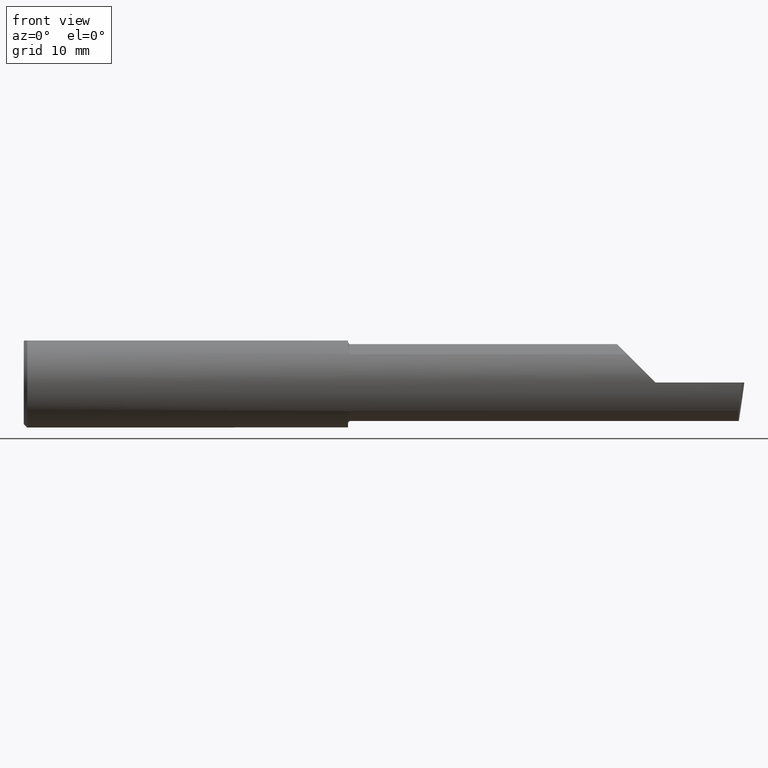
[diagram: clean part render]
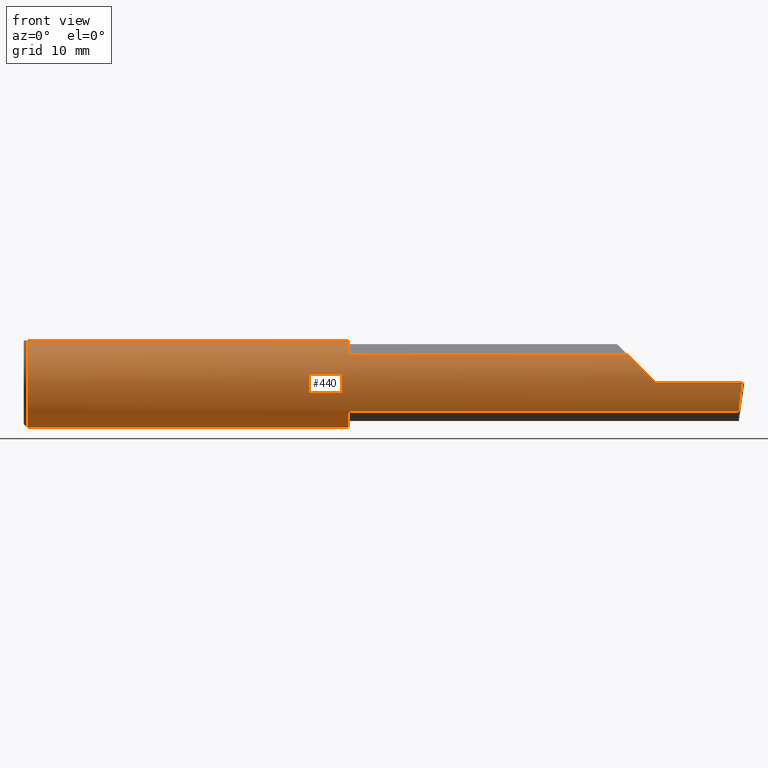
[diagram: same view with one face highlighted and labeled with its STEP entity id]
A machine part, front view. The second image highlights one B-rep face of the part: STEP entity #440.
In plain terms, the highlighted cylindrical surface (partial cylindrical patch) has radius 4.7587 mm, axis along (-1, -0, -0).
Its self-contained STEP definition (entity closure, byte-faithful):
#2 = AXIS2_PLACEMENT_3D ( 'NONE', #566, #483, #526 ) ;
#14 = CARTESIAN_POINT ( 'NONE',  ( 2.980648201915109485, -0.1728409665178086974, -0.08432347972837200833 ) ) ;
#19 = DIRECTION ( 'NONE',  ( -1.000000000000000000, -0.0000000000000000000, -0.0000000000000000000 ) ) ;
#26 = CARTESIAN_POINT ( 'NONE',  ( 0.01499999999999997863, -0.06597272163553657975, 0.1753499999999999781 ) ) ;
#27 = VERTEX_POINT ( 'NONE', #175 ) ;
#31 = CARTESIAN_POINT ( 'NONE',  ( 2.010000000000000231, -0.1454917112299465021, 0.1180346748349054287 ) ) ;
#37 = CARTESIAN_POINT ( 'NONE',  ( 0.0000000000000000000, 0.06597272163553677404, 0.1753499999999999226 ) ) ;
#45 = VERTEX_POINT ( 'NONE', #249 ) ;
#46 = CARTESIAN_POINT ( 'NONE',  ( 1.350000000000000311, -0.1013606951871662831, -0.1575627873933891920 ) ) ;
#48 = ORIENTED_EDGE ( 'NONE', *, *, #530, .F. ) ;
#50 = CARTESIAN_POINT ( 'NONE',  ( 1.350000000000000311, -0.1099295023601654653, -0.1520504436074704979 ) ) ;
#51 = CARTESIAN_POINT ( 'NONE',  ( 1.357921033727478521, -0.1445976381173492142, 0.1191292621734219709 ) ) ;
#55 = CARTESIAN_POINT ( 'NONE',  ( 1.350483388365424364, -0.1180160148311104606, -0.1458664675357414509 ) ) ;
#58 = CARTESIAN_POINT ( 'NONE',  ( 1.352152469637251109, -0.1294082664154920792, -0.1355718222394687866 ) ) ;
#61 = CARTESIAN_POINT ( 'NONE',  ( 1.357909242887170853, -0.1445870704379413896, -0.1191421054870963059 ) ) ;
#62 = VERTEX_POINT ( 'NONE', #218 ) ;
#63 = B_SPLINE_CURVE_WITH_KNOTS ( 'NONE', 3,
 ( #377, #544, #590, #491, #398, #84, #245, #269, #365, #155, #51, #425, #429, #511 ),
 .UNSPECIFIED., .F., .F.,
 ( 4, 2, 2, 2, 2, 2, 4 ),
 ( 0.0006605532644857158020, 0.001446564801351194179, 0.001839570569783934018, 0.002036073454000306322, 0.002134324896108489873, 0.002183450617162586635, 0.002232576338216682964 ),
 .UNSPECIFIED. ) ;
#66 = CARTESIAN_POINT ( 'NONE',  ( 2.629999999999999893, -0.1873499999999999888, -1.592040838891560883E-17 ) ) ;
#67 = CARTESIAN_POINT ( 'NONE',  ( 1.358770022656896170, -0.1452078353828887280, -0.1183847404910805950 ) ) ;
#68 = CARTESIAN_POINT ( 'NONE',  ( 2.586590019116435712, -0.1873500000000000165, 0.04340998088356372991 ) ) ;
#77 = CARTESIAN_POINT ( 'NONE',  ( 1.350000000000000311, 0.0000000000000000000, 0.0000000000000000000 ) ) ;
#82 = ORIENTED_EDGE ( 'NONE', *, *, #294, .T. ) ;
#83 = ORIENTED_EDGE ( 'NONE', *, *, #506, .T. ) ;
#84 = CARTESIAN_POINT ( 'NONE',  ( 1.354402240695039117, -0.1382337250035442500, 0.1264828452200237596 ) ) ;
#91 = CARTESIAN_POINT ( 'NONE',  ( 1.359335809113331406, -0.1454917112299462245, -0.1180346748349057201 ) ) ;
#95 = VERTEX_POINT ( 'NONE', #159 ) ;
#98 = CARTESIAN_POINT ( 'NONE',  ( 1.360000000000000320, -0.1454917112299460580, -0.1180346748349056646 ) ) ;
#100 = CARTESIAN_POINT ( 'NONE',  ( 0.01499999999999999424, 0.0000000000000000000, -0.1873499999999999888 ) ) ;
#104 = CARTESIAN_POINT ( 'NONE',  ( 1.356664569472228132, -0.1431262185210684379, -0.1208975608635240034 ) ) ;
#110 = VECTOR ( 'NONE', #462, 39.37007874015748143 ) ;
#124 = CARTESIAN_POINT ( 'NONE',  ( 2.511965325165094853, -0.1454917112299475568, 0.1180346748349042352 ) ) ;
#125 = CIRCLE ( 'NONE', #2, 0.1873499999999999888 ) ;
#128 = ORIENTED_EDGE ( 'NONE', *, *, #556, .T. ) ;
#129 = EDGE_LOOP ( 'NONE', ( #274, #83, #347, #207, #235, #445, #402, #128, #216, #48, #82, #301, #493 ) ) ;
#130 = VERTEX_POINT ( 'NONE', #100 ) ;
#134 = CIRCLE ( 'NONE', #192, 0.1873499999999999888 ) ;
#141 = EDGE_CURVE ( 'NONE', #287, #95, #581, .T. ) ;
#143 = LINE ( 'NONE', #454, #534 ) ;
#155 = CARTESIAN_POINT ( 'NONE',  ( 1.357580800664965670, -0.1442412736056265521, 0.1195608849622527420 ) ) ;
#159 = CARTESIAN_POINT ( 'NONE',  ( 1.350000000000000311, -0.1013606951871662831, -0.1575627873933891920 ) ) ;
#161 =( BOUNDED_CURVE ( )  B_SPLINE_CURVE ( 3, ( #66, #68, #311, #124 ),
 .UNSPECIFIED., .F., .F. ) 
 B_SPLINE_CURVE_WITH_KNOTS ( ( 4, 4 ),
 ( 4.712388980384689674, 5.393970886271879372 ),
 .UNSPECIFIED. ) 
 CURVE ( )  GEOMETRIC_REPRESENTATION_ITEM ( )  RATIONAL_B_SPLINE_CURVE ( ( 1.000000000000000000, 0.9616603987079558324, 0.9616603987079558324, 1.000000000000000000 ) ) 
 REPRESENTATION_ITEM ( '' )  );
#167 = EDGE_CURVE ( 'NONE', #337, #474, #413, .T. ) ;
#175 = CARTESIAN_POINT ( 'NONE',  ( 1.350000000000000311, -0.1013606951871662831, 0.1575627873933891920 ) ) ;
#176 = CARTESIAN_POINT ( 'NONE',  ( 1.352858161161657025, -0.1330631366558194806, -0.1319833113027350791 ) ) ;
#178 = DIRECTION ( 'NONE',  ( 0.0000000000000000000, 1.000000000000000000, 0.0000000000000000000 ) ) ;
#186 = AXIS2_PLACEMENT_3D ( 'NONE', #356, #460, #542 ) ;
#189 = VECTOR ( 'NONE', #280, 39.37007874015748143 ) ;
#192 = AXIS2_PLACEMENT_3D ( 'NONE', #77, #583, #178 ) ;
#193 = CARTESIAN_POINT ( 'NONE',  ( 1.350000000000000311, -0.06597272163553659363, 0.1753499999999999781 ) ) ;
#203 = CARTESIAN_POINT ( 'NONE',  ( 2.010000000000000231, -0.1454917112299465021, -0.1180346748349054287 ) ) ;
#207 = ORIENTED_EDGE ( 'NONE', *, *, #597, .T. ) ;
#216 = ORIENTED_EDGE ( 'NONE', *, *, #326, .F. ) ;
#218 = CARTESIAN_POINT ( 'NONE',  ( 0.01499999999999999424, 0.06597272163553677404, 0.1753499999999999226 ) ) ;
#227 = CARTESIAN_POINT ( 'NONE',  ( 1.357567572594822414, -0.1442269357022583354, -0.1195781817710035860 ) ) ;
#232 = EDGE_CURVE ( 'NONE', #95, #45, #595, .T. ) ;
#235 = ORIENTED_EDGE ( 'NONE', *, *, #167, .F. ) ;
#240 = AXIS2_PLACEMENT_3D ( 'NONE', #571, #495, #466 ) ;
#245 = CARTESIAN_POINT ( 'NONE',  ( 1.354997648858497827, -0.1399294360413330385, 0.1246027428089599431 ) ) ;
#249 = CARTESIAN_POINT ( 'NONE',  ( 1.350000000000000311, 0.06597272163553680180, 0.1753499999999999781 ) ) ;
#251 = DIRECTION ( 'NONE',  ( 0.0000000000000000000, 0.0000000000000000000, 1.000000000000000000 ) ) ;
#254 = VERTEX_POINT ( 'NONE', #579 ) ;
#256 = CIRCLE ( 'NONE', #471, 0.1873499999999999888 ) ;
#260 = CARTESIAN_POINT ( 'NONE',  ( 0.01499999999999999424, 0.0000000000000000000, 0.0000000000000000000 ) ) ;
#261 = EDGE_CURVE ( 'NONE', #27, #337, #63, .T. ) ;
#262 = CARTESIAN_POINT ( 'NONE',  ( 0.0000000000000000000, -0.06597272163553671853, 0.1753499999999999226 ) ) ;
#269 = CARTESIAN_POINT ( 'NONE',  ( 1.356216587669451412, -0.1423502170013163648, 0.1218111458006551073 ) ) ;
#274 = ORIENTED_EDGE ( 'NONE', *, *, #524, .F. ) ;
#280 = DIRECTION ( 'NONE',  ( 1.000000000000000000, -5.691349986800549142E-18, 0.0000000000000000000 ) ) ;
#287 = VERTEX_POINT ( 'NONE', #309 ) ;
#294 = EDGE_CURVE ( 'NONE', #62, #45, #305, .T. ) ;
#301 = ORIENTED_EDGE ( 'NONE', *, *, #232, .F. ) ;
#305 = LINE ( 'NONE', #37, #558 ) ;
#309 = CARTESIAN_POINT ( 'NONE',  ( 1.360000000000000320, -0.1454917112299460580, -0.1180346748349056646 ) ) ;
#311 = CARTESIAN_POINT ( 'NONE',  ( 2.545676520271628718, -0.1728409665178091414, 0.08432347972837085648 ) ) ;
#315 = VERTEX_POINT ( 'NONE', #508 ) ;
#316 = VERTEX_POINT ( 'NONE', #26 ) ;
#321 = CARTESIAN_POINT ( 'NONE',  ( 2.990625440078233499, -0.1873499999999999888, -6.696573958807098242E-17 ) ) ;
#326 = EDGE_CURVE ( 'NONE', #130, #316, #256, .T. ) ;
#337 = VERTEX_POINT ( 'NONE', #538 ) ;
#341 = DIRECTION ( 'NONE',  ( -1.000000000000000000, -0.0000000000000000000, -0.0000000000000000000 ) ) ;
#347 = ORIENTED_EDGE ( 'NONE', *, *, #587, .T. ) ;
#356 = CARTESIAN_POINT ( 'NONE',  ( 1.350000000000000311, 0.0000000000000000000, 0.0000000000000000000 ) ) ;
#365 = CARTESIAN_POINT ( 'NONE',  ( 1.356674049009441552, -0.1431412424162801234, 0.1208797671938530438 ) ) ;
#367 = CARTESIAN_POINT ( 'NONE',  ( 2.977223734188808368, -0.1454917112299465021, -0.1180346748349054287 ) ) ;
#377 = CARTESIAN_POINT ( 'NONE',  ( 1.350000000000000311, -0.1013606951871662831, 0.1575627873933891920 ) ) ;
#394 = VERTEX_POINT ( 'NONE', #193 ) ;
#395 = DIRECTION ( 'NONE',  ( -1.000000000000000000, -0.0000000000000000000, -0.0000000000000000000 ) ) ;
#398 = CARTESIAN_POINT ( 'NONE',  ( 1.352845212421890819, -0.1330145888620359040, 0.1320338710448779596 ) ) ;
#402 = ORIENTED_EDGE ( 'NONE', *, *, #568, .F. ) ;
#413 = LINE ( 'NONE', #31, #189 ) ;
#425 = CARTESIAN_POINT ( 'NONE',  ( 1.358780002058963987, -0.1452129146512408098, 0.1183784924451703191 ) ) ;
#429 = CARTESIAN_POINT ( 'NONE',  ( 1.359343186359709632, -0.1454917112302220594, 0.1180346748345674213 ) ) ;
#440 = ADVANCED_FACE ( 'NONE', ( #551 ), #574, .T. ) ;
#441 = CARTESIAN_POINT ( 'NONE',  ( 1.354404192622242542, -0.1382376748423444768, -0.1264781021717286957 ) ) ;
#442 = VERTEX_POINT ( 'NONE', #321 ) ;
#445 = ORIENTED_EDGE ( 'NONE', *, *, #261, .F. ) ;
#454 = CARTESIAN_POINT ( 'NONE',  ( 5.044671737413194975E-32, -0.1873499999999999610, 3.563723795045361633E-16 ) ) ;
#460 = DIRECTION ( 'NONE',  ( 1.000000000000000000, -5.691349986800549142E-18, 0.0000000000000000000 ) ) ;
#462 = DIRECTION ( 'NONE',  ( -1.000000000000000000, 5.691349986800549142E-18, -0.0000000000000000000 ) ) ;
#466 = DIRECTION ( 'NONE',  ( 0.0000000000000000000, 0.0000000000000000000, 1.000000000000000000 ) ) ;
#471 = AXIS2_PLACEMENT_3D ( 'NONE', #260, #341, #251 ) ;
#474 = VERTEX_POINT ( 'NONE', #507 ) ;
#478 = LINE ( 'NONE', #203, #110 ) ;
#483 = DIRECTION ( 'NONE',  ( -1.000000000000000000, -0.0000000000000000000, -0.0000000000000000000 ) ) ;
#486 = LINE ( 'NONE', #262, #497 ) ;
#491 = CARTESIAN_POINT ( 'NONE',  ( 1.352149571221041180, -0.1293863363941681333, 0.1355911774285945004 ) ) ;
#493 = ORIENTED_EDGE ( 'NONE', *, *, #141, .F. ) ;
#495 = DIRECTION ( 'NONE',  ( -1.000000000000000000, -0.0000000000000000000, -0.0000000000000000000 ) ) ;
#497 = VECTOR ( 'NONE', #19, 39.37007874015748143 ) ;
#506 = EDGE_CURVE ( 'NONE', #315, #442, #572, .T. ) ;
#507 = CARTESIAN_POINT ( 'NONE',  ( 2.511965325165094853, -0.1454917112299475568, 0.1180346748349042352 ) ) ;
#508 = CARTESIAN_POINT ( 'NONE',  ( 2.977223734188808368, -0.1454917112299465021, -0.1180346748349054287 ) ) ;
#509 = CARTESIAN_POINT ( 'NONE',  ( 1.354992410154055804, -0.1399157128067677891, -0.1246181391956572848 ) ) ;
#511 = CARTESIAN_POINT ( 'NONE',  ( 1.360000000000000320, -0.1454917112299459747, 0.1180346748349057201 ) ) ;
#524 = EDGE_CURVE ( 'NONE', #315, #287, #478, .T. ) ;
#526 = DIRECTION ( 'NONE',  ( 0.0000000000000000000, 0.0000000000000000000, 1.000000000000000000 ) ) ;
#530 = EDGE_CURVE ( 'NONE', #62, #130, #125, .T. ) ;
#534 = VECTOR ( 'NONE', #395, 39.37007874015748143 ) ;
#538 = CARTESIAN_POINT ( 'NONE',  ( 1.360000000000000320, -0.1454917112299459747, 0.1180346748349057201 ) ) ;
#542 = DIRECTION ( 'NONE',  ( 0.0000000000000000000, 1.000000000000000000, 0.0000000000000000000 ) ) ;
#544 = CARTESIAN_POINT ( 'NONE',  ( 1.350000000000000533, -0.1100056335683315678, 0.1520014681335478957 ) ) ;
#545 = CARTESIAN_POINT ( 'NONE',  ( 1.356208682939483712, -0.1423361566194920047, -0.1218275716760987282 ) ) ;
#551 = FACE_OUTER_BOUND ( 'NONE', #129, .T. ) ;
#556 = EDGE_CURVE ( 'NONE', #394, #316, #486, .T. ) ;
#558 = VECTOR ( 'NONE', #585, 39.37007874015748143 ) ;
#566 = CARTESIAN_POINT ( 'NONE',  ( 0.01499999999999999424, 0.0000000000000000000, 0.0000000000000000000 ) ) ;
#568 = EDGE_CURVE ( 'NONE', #394, #27, #134, .T. ) ;
#571 = CARTESIAN_POINT ( 'NONE',  ( 0.0000000000000000000, 0.0000000000000000000, 0.0000000000000000000 ) ) ;
#572 =( BOUNDED_CURVE ( )  B_SPLINE_CURVE ( 3, ( #367, #14, #594, #598 ),
 .UNSPECIFIED., .F., .F. ) 
 B_SPLINE_CURVE_WITH_KNOTS ( ( 4, 4 ),
 ( 0.6791649766275661415, 1.360746882514764389 ),
 .UNSPECIFIED. ) 
 CURVE ( )  GEOMETRIC_REPRESENTATION_ITEM ( )  RATIONAL_B_SPLINE_CURVE ( ( 1.000000000000000000, 0.9616603987079548332, 0.9616603987079548332, 1.000000000000000000 ) ) 
 REPRESENTATION_ITEM ( '' )  );
#574 = CYLINDRICAL_SURFACE ( 'NONE', #240, 0.1873499999999999888 ) ;
#579 = CARTESIAN_POINT ( 'NONE',  ( 2.629999999999999893, -0.1873499999999999888, -1.592040838891560883E-17 ) ) ;
#581 = B_SPLINE_CURVE_WITH_KNOTS ( 'NONE', 3,
 ( #98, #91, #67, #61, #227, #104, #545, #509, #441, #176, #58, #55, #50, #46 ),
 .UNSPECIFIED., .F., .F.,
 ( 4, 2, 2, 2, 2, 2, 4 ),
 ( 1.967643395654746293E-07, 5.001319782656384310E-05, 9.982963131356221390E-05, 0.0001994624982875588606, 0.0003987282322355520186, 0.0007972597001315340519, 0.001594322635923497468 ),
 .UNSPECIFIED. ) ;
#583 = DIRECTION ( 'NONE',  ( 1.000000000000000000, -5.691349986800549142E-18, 0.0000000000000000000 ) ) ;
#585 = DIRECTION ( 'NONE',  ( 1.000000000000000000, 0.0000000000000000000, 0.0000000000000000000 ) ) ;
#587 = EDGE_CURVE ( 'NONE', #442, #254, #143, .T. ) ;
#590 = CARTESIAN_POINT ( 'NONE',  ( 1.350493306168248697, -0.1180879943980263358, 0.1458023451353283872 ) ) ;
#594 = CARTESIAN_POINT ( 'NONE',  ( 2.985293537526805263, -0.1873500000000000443, -0.04340998088356439605 ) ) ;
#595 = CIRCLE ( 'NONE', #186, 0.1873499999999999888 ) ;
#597 = EDGE_CURVE ( 'NONE', #254, #474, #161, .T. ) ;
#598 = CARTESIAN_POINT ( 'NONE',  ( 2.990625440078233499, -0.1873499999999999888, -6.696573958807098242E-17 ) ) ;